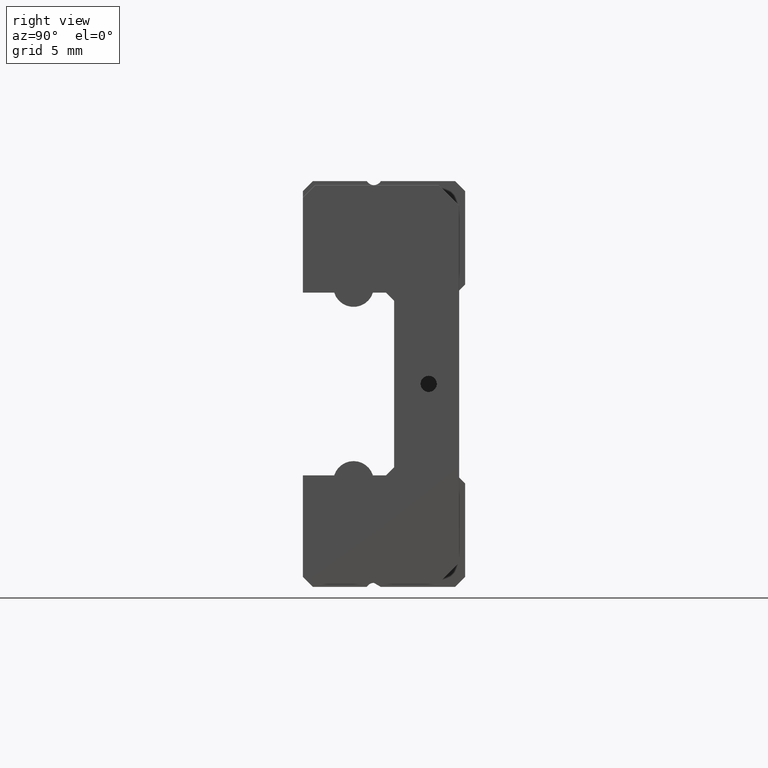
[diagram: clean part render]
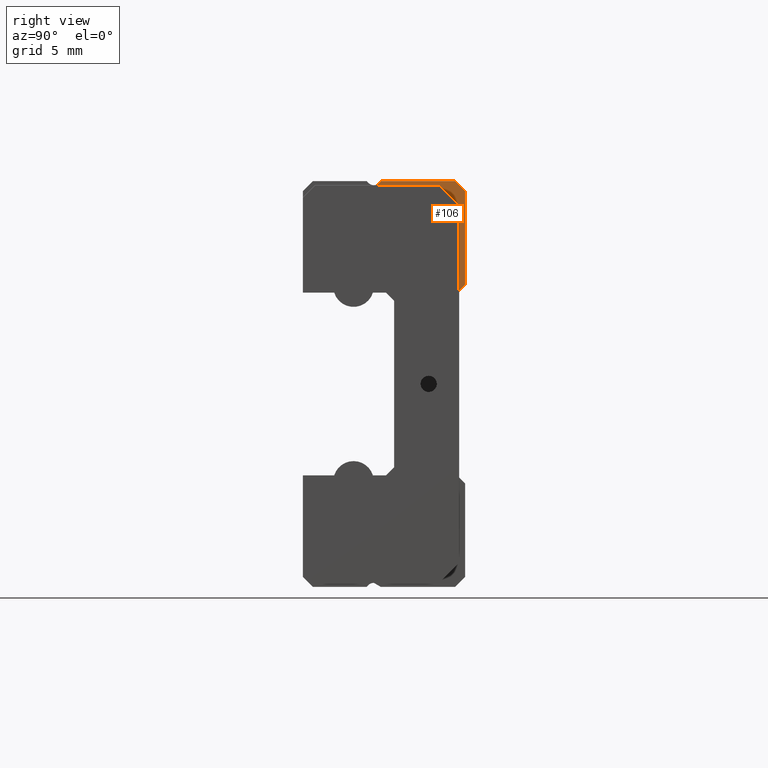
[diagram: same view with one face highlighted and labeled with its STEP entity id]
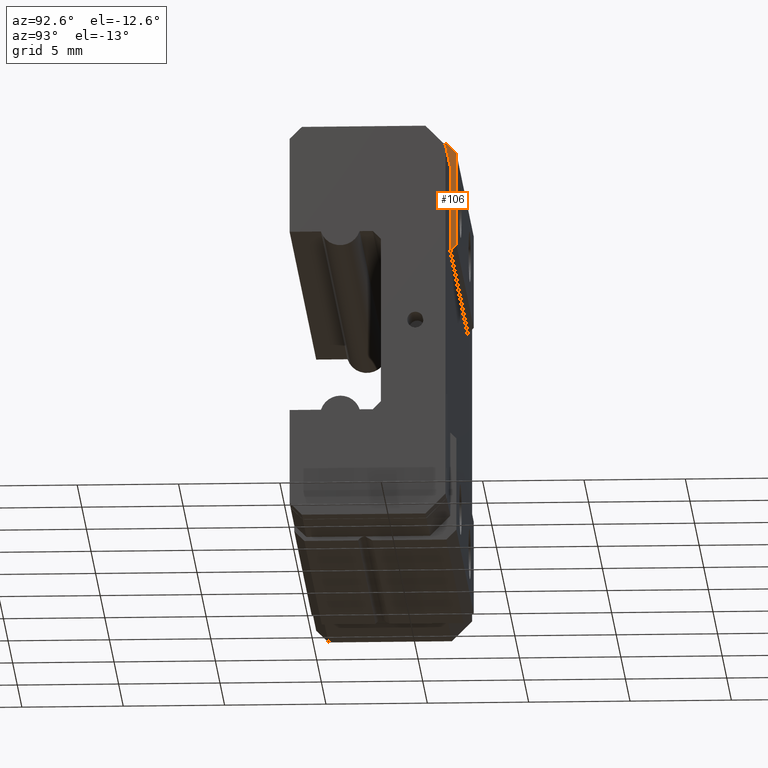
[diagram: same view with one face highlighted and labeled with its STEP entity id]
A machine part, right view. The second image highlights one B-rep face of the part: STEP entity #106.
A second angle (auxiliary view) of the same face is appended — the face is thin or edge-on in the first view.
In plain terms, the highlighted planar face has unit normal (1, 0, 0).
Its self-contained STEP definition (entity closure, byte-faithful):
#42 = VERTEX_POINT ( 'NONE', #411 ) ;
#44 = EDGE_CURVE ( 'NONE', #78, #42, #410, .T. ) ;
#51 = EDGE_LOOP ( 'NONE', ( #107, #110, #112, #113, #114, #115, #92, #93 ) ) ;
#52 = EDGE_CURVE ( 'NONE', #1047, #78, #396, .T. ) ;
#78 = VERTEX_POINT ( 'NONE', #416 ) ;
#92 = ORIENTED_EDGE ( 'NONE', *, *, #749, .T. ) ;
#93 = ORIENTED_EDGE ( 'NONE', *, *, #971, .T. ) ;
#105 = EDGE_CURVE ( 'NONE', #42, #923, #498, .T. ) ;
#106 = ADVANCED_FACE ( 'NONE', ( #494 ), #493, .T. ) ;
#107 = ORIENTED_EDGE ( 'NONE', *, *, #108, .F. ) ;
#108 = EDGE_CURVE ( 'NONE', #109, #904, #488, .T. ) ;
#109 = VERTEX_POINT ( 'NONE', #484 ) ;
#110 = ORIENTED_EDGE ( 'NONE', *, *, #111, .F. ) ;
#111 = EDGE_CURVE ( 'NONE', #1015, #109, #483, .T. ) ;
#112 = ORIENTED_EDGE ( 'NONE', *, *, #1068, .F. ) ;
#113 = ORIENTED_EDGE ( 'NONE', *, *, #52, .T. ) ;
#114 = ORIENTED_EDGE ( 'NONE', *, *, #44, .T. ) ;
#115 = ORIENTED_EDGE ( 'NONE', *, *, #105, .T. ) ;
#393 = DIRECTION ( 'NONE',  ( 0.0000000000000000000, 0.7071067811865465700, 0.7071067811865485700 ) ) ;
#394 = VECTOR ( 'NONE', #393, 1000.000000000000000 ) ;
#395 = CARTESIAN_POINT ( 'NONE',  ( 9.449999999999999300, 7.699999999999996600, 4.599999999999997900 ) ) ;
#396 = LINE ( 'NONE', #395, #394 ) ;
#407 = DIRECTION ( 'NONE',  ( 0.0000000000000000000, 2.262682794752357000E-015, 1.000000000000000000 ) ) ;
#408 = VECTOR ( 'NONE', #407, 1000.000000000000000 ) ;
#409 = CARTESIAN_POINT ( 'NONE',  ( 9.449999999999999300, 7.999999999999998200, 4.900000000000000400 ) ) ;
#410 = LINE ( 'NONE', #409, #408 ) ;
#411 = CARTESIAN_POINT ( 'NONE',  ( 9.449999999999999300, 8.000000000000008900, 9.500000000000001800 ) ) ;
#416 = CARTESIAN_POINT ( 'NONE',  ( 9.449999999999999300, 7.999999999999998200, 4.900000000000000400 ) ) ;
#480 = DIRECTION ( 'NONE',  ( 0.0000000000000000000, -0.7071067811865489100, 0.7071067811865462400 ) ) ;
#481 = VECTOR ( 'NONE', #480, 999.9999999999998900 ) ;
#482 = CARTESIAN_POINT ( 'NONE',  ( 9.449999999999999300, 7.699999999999998400, 8.800000000000002500 ) ) ;
#483 = LINE ( 'NONE', #482, #481 ) ;
#484 = CARTESIAN_POINT ( 'NONE',  ( 9.449999999999999300, 6.699999999999997500, 9.799999999999998900 ) ) ;
#485 = DIRECTION ( 'NONE',  ( 0.0000000000000000000, -1.000000000000000000, 2.843808977011160300E-016 ) ) ;
#486 = VECTOR ( 'NONE', #485, 1000.000000000000000 ) ;
#487 = CARTESIAN_POINT ( 'NONE',  ( 9.449999999999999300, 6.699999999999997500, 9.799999999999998900 ) ) ;
#488 = LINE ( 'NONE', #487, #486 ) ;
#489 = DIRECTION ( 'NONE',  ( 0.0000000000000000000, 0.0000000000000000000, -1.000000000000000000 ) ) ;
#490 = DIRECTION ( 'NONE',  ( 1.000000000000000000, 0.0000000000000000000, 0.0000000000000000000 ) ) ;
#491 = CARTESIAN_POINT ( 'NONE',  ( 9.449999999999999300, 2.500000000000000000, 4.799999999999999800 ) ) ;
#492 = AXIS2_PLACEMENT_3D ( 'NONE', #491, #490, #489 ) ;
#493 = PLANE ( 'NONE',  #492 ) ;
#494 = FACE_OUTER_BOUND ( 'NONE', #51, .T. ) ;
#495 = DIRECTION ( 'NONE',  ( 0.0000000000000000000, -0.7071067811865500200, 0.7071067811865451300 ) ) ;
#496 = VECTOR ( 'NONE', #495, 1000.000000000000100 ) ;
#497 = CARTESIAN_POINT ( 'NONE',  ( 9.449999999999999300, 7.500000000000007100, 10.00000000000000000 ) ) ;
#498 = LINE ( 'NONE', #497, #496 ) ;
#749 = EDGE_CURVE ( 'NONE', #923, #921, #1713, .T. ) ;
#904 = VERTEX_POINT ( 'NONE', #1952 ) ;
#921 = VERTEX_POINT ( 'NONE', #1997 ) ;
#923 = VERTEX_POINT ( 'NONE', #1992 ) ;
#971 = EDGE_CURVE ( 'NONE', #921, #904, #2111, .T. ) ;
#1015 = VERTEX_POINT ( 'NONE', #2148 ) ;
#1047 = VERTEX_POINT ( 'NONE', #2222 ) ;
#1068 = EDGE_CURVE ( 'NONE', #1047, #1015, #2298, .T. ) ;
#1710 = DIRECTION ( 'NONE',  ( 0.0000000000000000000, -1.000000000000000000, 0.0000000000000000000 ) ) ;
#1711 = VECTOR ( 'NONE', #1710, 1000.000000000000000 ) ;
#1712 = CARTESIAN_POINT ( 'NONE',  ( 9.449999999999999300, 3.846410161513774000, 10.00000000000000000 ) ) ;
#1713 = LINE ( 'NONE', #1712, #1711 ) ;
#1952 = CARTESIAN_POINT ( 'NONE',  ( 9.449999999999999300, 3.499999999999999600, 9.800000000000000700 ) ) ;
#1992 = CARTESIAN_POINT ( 'NONE',  ( 9.449999999999999300, 7.500000000000007100, 10.00000000000000000 ) ) ;
#1997 = CARTESIAN_POINT ( 'NONE',  ( 9.449999999999999300, 3.846410161513774000, 10.00000000000000000 ) ) ;
#2107 = DIRECTION ( 'NONE',  ( 0.0000000000000000000, 0.0000000000000000000, -1.000000000000000000 ) ) ;
#2108 = DIRECTION ( 'NONE',  ( -1.000000000000000000, 0.0000000000000000000, 0.0000000000000000000 ) ) ;
#2109 = CARTESIAN_POINT ( 'NONE',  ( 9.449999999999999300, 3.499999999999999600, 10.20000000000000300 ) ) ;
#2110 = AXIS2_PLACEMENT_3D ( 'NONE', #2109, #2108, #2107 ) ;
#2111 = CIRCLE ( 'NONE', #2110, 0.3999999999999993000 ) ;
#2148 = CARTESIAN_POINT ( 'NONE',  ( 9.449999999999999300, 7.699999999999998400, 8.800000000000002500 ) ) ;
#2222 = CARTESIAN_POINT ( 'NONE',  ( 9.449999999999999300, 7.699999999999996600, 4.599999999999997900 ) ) ;
#2295 = DIRECTION ( 'NONE',  ( 0.0000000000000000000, 9.856383386231856400E-017, 1.000000000000000000 ) ) ;
#2296 = VECTOR ( 'NONE', #2295, 1000.000000000000000 ) ;
#2297 = CARTESIAN_POINT ( 'NONE',  ( 9.449999999999999300, 7.699999999999997500, 0.0000000000000000000 ) ) ;
#2298 = LINE ( 'NONE', #2297, #2296 ) ;